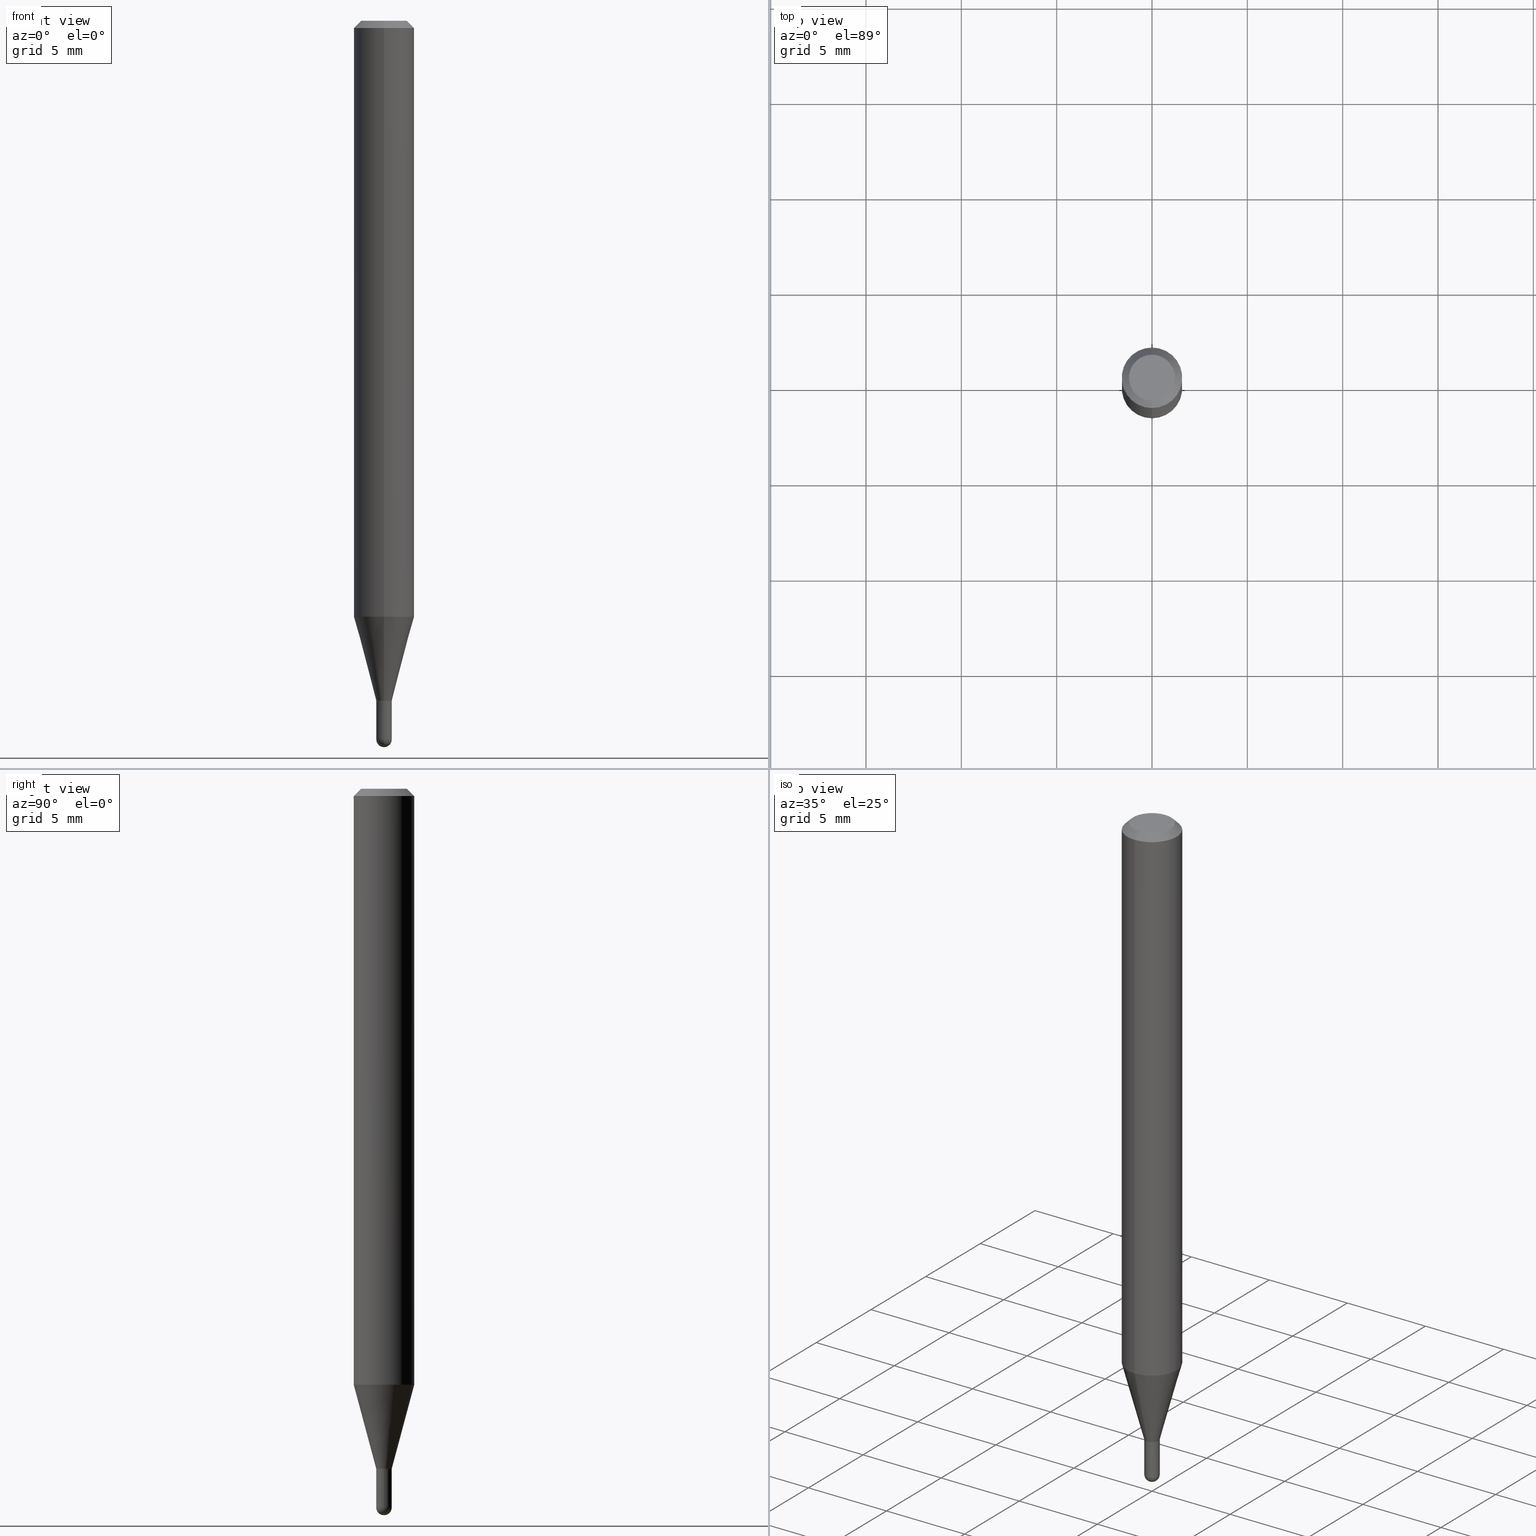
[diagram: canonical four-view strip — front | top / right | iso, engineering-drawing reading convention]
A machine part, canonical four-view strip (front | top / right | iso — engineering-drawing reading convention). The complete STEP part file that produces these views, byte-faithful:
ISO-10303-21;
HEADER;
FILE_DESCRIPTION (( 'STEP AP203' ),
    '1' );
FILE_NAME ('01455.STEP',
    '2024-03-07T21:07:16',
    ( '' ),
    ( '' ),
    'SwSTEP 2.0',
    'SolidWorks 2023',
    '' );
FILE_SCHEMA (( 'CONFIG_CONTROL_DESIGN' ));
ENDSEC;

DATA;
#1 = DIRECTION ( 'NONE',  ( -6.982962677686266711E-15, -1.000000000000000000, 0.000000000000000000 ) ) ;
#2 = CLOSED_SHELL ( 'NONE', ( #155, #510, #244, #22, #69, #334, #358, #122, #252, #385, #433, #423 ) ) ;
#3 = ORIENTED_EDGE ( 'NONE', *, *, #380, .F. ) ;
#4 = CIRCLE ( 'NONE', #356, 0.04749999999999999362 ) ;
#5 = DIRECTION ( 'NONE',  ( 1.000000000000000000, -6.982962677686271444E-15, 0.000000000000000000 ) ) ;
#6 = EDGE_CURVE ( 'NONE', #406, #120, #399, .T. ) ;
#7 = ORIENTED_EDGE ( 'NONE', *, *, #227, .T. ) ;
#8 = FACE_OUTER_BOUND ( 'NONE', #161, .T. ) ;
#9 = DIRECTION ( 'NONE',  ( 5.024295867788190974E-15, 0.7071067811865681119, 0.7071067811865270336 ) ) ;
#10 = CARTESIAN_POINT ( 'NONE',  ( 0.000000000000000000, 0.000000000000000000, 0.000000000000000000 ) ) ;
#11 = CIRCLE ( 'NONE', #209, 0.01599999999999992747 ) ;
#12 = AXIS2_PLACEMENT_3D ( 'NONE', #418, #111, #501 ) ;
#13 = PRODUCT_DEFINITION_FORMATION_WITH_SPECIFIED_SOURCE ( 'ANY', '', #195, .NOT_KNOWN. ) ;
#14 = DIRECTION ( 'NONE',  ( -2.445476360010259663E-29, 3.491470521335632447E-15, 1.000000000000000000 ) ) ;
#15 = CARTESIAN_POINT ( 'NONE',  ( 3.627707442316055177E-29, -5.183317741721863654E-15, -1.483999999999999986 ) ) ;
#16 = EDGE_CURVE ( 'NONE', #232, #241, #99, .T. ) ;
#17 = VERTEX_POINT ( 'NONE', #171 ) ;
#18 = DIRECTION ( 'NONE',  ( -6.982962677686266711E-15, -1.000000000000000000, 0.000000000000000000 ) ) ;
#19 = CIRCLE ( 'NONE', #307, 0.04749999999999999362 ) ;
#20 = AXIS2_PLACEMENT_3D ( 'NONE', #403, #46, #401 ) ;
#21 = CARTESIAN_POINT ( 'NONE',  ( 3.629075708378742535E-29, -5.181358306843227696E-15, -1.483999999999999986 ) ) ;
#22 = ADVANCED_FACE ( 'NONE', ( #169 ), #333, .T. ) ;
#23 = DIRECTION ( 'NONE',  ( 1.000000000000000000, -7.105427357601001070E-15, 4.926315508542082329E-29 ) ) ;
#24 = DIRECTION ( 'NONE',  ( 1.839019923739650802E-15, 0.2588190451025320638, 0.9659258262890650926 ) ) ;
#25 =( NAMED_UNIT ( * ) PLANE_ANGLE_UNIT ( ) SI_UNIT ( $, .RADIAN. ) );
#26 = FACE_OUTER_BOUND ( 'NONE', #149, .T. ) ;
#27 = DATE_TIME_ROLE ( 'classification_date' ) ;
#28 = DIRECTION ( 'NONE',  ( 1.000000000000000000, -6.982962677686271444E-15, 0.000000000000000000 ) ) ;
#29 = COORDINATED_UNIVERSAL_TIME_OFFSET ( 5, 0, .BEHIND. ) ;
#30 = CC_DESIGN_PERSON_AND_ORGANIZATION_ASSIGNMENT ( #184, #382, ( #13 ) ) ;
#31 = CARTESIAN_POINT ( 'NONE',  ( 4.440892098500924943E-16, 0.06249999999999567707, -1.230459637448052979 ) ) ;
#32 = COORDINATED_UNIVERSAL_TIME_OFFSET ( 5, 0, .BEHIND. ) ;
#33 = CARTESIAN_POINT ( 'NONE',  ( 3.840629472727447874E-16, 0.04749999999999999362, -1.747056831868805136E-16 ) ) ;
#34 = DIRECTION ( 'NONE',  ( -6.982962677686265922E-15, -1.000000000000000000, 0.000000000000000000 ) ) ;
#35 = CIRCLE ( 'NONE', #325, 0.06250000000000000000 ) ;
#36 = EDGE_CURVE ( 'NONE', #323, #481, #19, .T. ) ;
#37 = VERTEX_POINT ( 'NONE', #452 ) ;
#38 = APPROVAL_STATUS ( 'not_yet_approved' ) ;
#39 = CARTESIAN_POINT ( 'NONE',  ( -1.117274028429457833E-16, -0.01600000000000488184, -1.403500000000000192 ) ) ;
#40 = ORIENTED_EDGE ( 'NONE', *, *, #6, .T. ) ;
#41 = DIRECTION ( 'NONE',  ( -2.445476360010259663E-29, 3.491470521335632447E-15, 1.000000000000000000 ) ) ;
#42 = ORIENTED_EDGE ( 'NONE', *, *, #289, .T. ) ;
#43 = ADVANCED_FACE ( 'NONE', ( #8 ), #88, .T. ) ;
#44 = DIRECTION ( 'NONE',  ( -6.982962677686265922E-15, -1.000000000000000000, 4.370956789862821150E-15 ) ) ;
#45 = VERTEX_POINT ( 'NONE', #254 ) ;
#46 = DIRECTION ( 'NONE',  ( -2.445468806185136597E-29, 3.491481338843145583E-15, 1.000000000000000000 ) ) ;
#47 = ORIENTED_EDGE ( 'NONE', *, *, #473, .T. ) ;
#48 = CYLINDRICAL_SURFACE ( 'NONE', #485, 0.01599999999999992747 ) ;
#49 = VERTEX_POINT ( 'NONE', #246 ) ;
#50 = DIRECTION ( 'NONE',  ( 0.000000000000000000, 0.000000000000000000, 1.000000000000000000 ) ) ;
#51 = DIRECTION ( 'NONE',  ( -1.000000000000000000, 6.982962677686265922E-15, -4.883557194083112340E-29 ) ) ;
#52 = AXIS2_PLACEMENT_3D ( 'NONE', #56, #487, #483 ) ;
#53 = EDGE_CURVE ( 'NONE', #241, #491, #216, .T. ) ;
#54 = VECTOR ( 'NONE', #24, 39.37007874015748854 ) ;
#55 = EDGE_LOOP ( 'NONE', ( #472, #427, #212, #479 ) ) ;
#56 = CARTESIAN_POINT ( 'NONE',  ( 3.432226071274399995E-29, -4.900278876694560224E-15, -1.403500000000000192 ) ) ;
#57 = EDGE_CURVE ( 'NONE', #316, #406, #488, .T. ) ;
#58 = EDGE_LOOP ( 'NONE', ( #509, #361, #280, #407 ) ) ;
#59 = CIRCLE ( 'NONE', #127, 0.01600000000000000033 ) ;
#60 =( LENGTH_UNIT ( ) NAMED_UNIT ( * ) SI_UNIT ( $, .METRE. ) );
#61 = AXIS2_PLACEMENT_3D ( 'NONE', #221, #23, #97 ) ;
#62 = APPLICATION_CONTEXT ( 'configuration controlled 3d designs of mechanical parts and assemblies' ) ;
#63 = LINE ( 'NONE', #228, #54 ) ;
#64 = CYLINDRICAL_SURFACE ( 'NONE', #20, 0.01600000000000000033 ) ;
#65 = DIRECTION ( 'NONE',  ( -1.000000000000000000, 6.982962677686265922E-15, -4.876176775795935793E-29 ) ) ;
#66 = PERSON_AND_ORGANIZATION ( #108, #400 ) ;
#67 = DIRECTION ( 'NONE',  ( 1.000000000000000000, -6.982962677686271444E-15, 0.000000000000000000 ) ) ;
#68 = ADVANCED_BREP_SHAPE_REPRESENTATION ( '01455', ( #460, #445, #319 ), #94 ) ;
#69 = ADVANCED_FACE ( 'NONE', ( #141 ), #456, .T. ) ;
#70 = PERSON_AND_ORGANIZATION ( #108, #400 ) ;
#71 = FACE_OUTER_BOUND ( 'NONE', #55, .T. ) ;
#72 = CALENDAR_DATE ( 2024, 7, 3 ) ;
#73 = CARTESIAN_POINT ( 'NONE',  ( 3.668214540015391789E-31, -5.237205782003451554E-17, -0.01500000000000000812 ) ) ;
#74 = EDGE_CURVE ( 'NONE', #436, #170, #484, .T. ) ;
#75 = CARTESIAN_POINT ( 'NONE',  ( -4.364351673553912750E-16, -0.06250000000000005551, -0.01499999999999979128 ) ) ;
#76 = ORIENTED_EDGE ( 'NONE', *, *, #473, .F. ) ;
#77 = CYLINDRICAL_SURFACE ( 'NONE', #476, 0.06250000000000000000 ) ;
#78 = CC_DESIGN_APPROVAL ( #84, ( #86 ) ) ;
#79 = EDGE_LOOP ( 'NONE', ( #243, #215, #192, #40 ) ) ;
#80 = DIRECTION ( 'NONE',  ( -2.445476360010259663E-29, 3.491470521335632447E-15, 1.000000000000000000 ) ) ;
#81 = ORIENTED_EDGE ( 'NONE', *, *, #177, .T. ) ;
#82 = DIRECTION ( 'NONE',  ( -2.445476360010259663E-29, 3.491470521335632447E-15, 1.000000000000000000 ) ) ;
#83 = EDGE_LOOP ( 'NONE', ( #91, #321, #410, #152 ) ) ;
#84 = APPROVAL ( #271, 'UNSPECIFIED' ) ;
#85 = ORIENTED_EDGE ( 'NONE', *, *, #105, .F. ) ;
#86 = SECURITY_CLASSIFICATION ( '', '', #150 ) ;
#87 =( CONVERSION_BASED_UNIT ( 'INCH', #486 ) LENGTH_UNIT ( ) NAMED_UNIT ( #315 ) );
#88 = SPHERICAL_SURFACE ( 'NONE', #138, 0.01600000000000016340 ) ;
#89 = CARTESIAN_POINT ( 'NONE',  ( 3.433448809454404700E-29, -4.902024611955227928E-15, -1.404000000000000137 ) ) ;
#90 = EDGE_CURVE ( 'NONE', #49, #45, #283, .T. ) ;
#91 = ORIENTED_EDGE ( 'NONE', *, *, #346, .T. ) ;
#92 = ORIENTED_EDGE ( 'NONE', *, *, #53, .T. ) ;
#93 = AXIS2_PLACEMENT_3D ( 'NONE', #462, #298, #454 ) ;
#94 =( GEOMETRIC_REPRESENTATION_CONTEXT ( 3 ) GLOBAL_UNCERTAINTY_ASSIGNED_CONTEXT ( ( #275 ) ) GLOBAL_UNIT_ASSIGNED_CONTEXT ( ( #87, #25, #218 ) ) REPRESENTATION_CONTEXT ( 'NONE', 'WORKASPACE' ) );
#95 = ORIENTED_EDGE ( 'NONE', *, *, #197, .F. ) ;
#96 = EDGE_CURVE ( 'NONE', #45, #49, #11, .T. ) ;
#97 = DIRECTION ( 'NONE',  ( 7.105427357601000281E-15, 1.000000000000000000, 0.000000000000000000 ) ) ;
#98 = DIRECTION ( 'NONE',  ( -2.445476360010259663E-29, 3.491470521335632447E-15, 1.000000000000000000 ) ) ;
#99 = CIRCLE ( 'NONE', #439, 0.01600000000000016340 ) ;
#100 = AXIS2_PLACEMENT_3D ( 'NONE', #106, #415, #65 ) ;
#101 = FACE_OUTER_BOUND ( 'NONE', #398, .T. ) ;
#102 = PLANE ( 'NONE',  #100 ) ;
#103 = APPROVAL_DATE_TIME ( #417, #503 ) ;
#104 = DIRECTION ( 'NONE',  ( 2.445476360010259663E-29, -3.491470521335632447E-15, -1.000000000000000000 ) ) ;
#105 = EDGE_CURVE ( 'NONE', #491, #436, #174, .T. ) ;
#106 = CARTESIAN_POINT ( 'NONE',  ( 1.117274028430145868E-16, 0.01599999999999509800, -1.404000000000000137 ) ) ;
#107 = DATE_TIME_ROLE ( 'creation_date' ) ;
#108 = PERSON ( 'UNSPECIFIED', 'UNSPECIFIED', 'UNSPECIFIED', ('UNSPECIFIED'), ('UNSPECIFIED'), ('UNSPECIFIED') ) ;
#109 = AXIS2_PLACEMENT_3D ( 'NONE', #435, #242, #5 ) ;
#110 = VECTOR ( 'NONE', #378, 39.37007874015748143 ) ;
#111 = DIRECTION ( 'NONE',  ( -2.445476360010259663E-29, 3.491470521335632447E-15, 1.000000000000000000 ) ) ;
#112 = PERSON_AND_ORGANIZATION ( #108, #400 ) ;
#113 = CARTESIAN_POINT ( 'NONE',  ( -4.364351673553615941E-16, -0.06250000000000430211, -1.230459637448052534 ) ) ;
#114 = ORIENTED_EDGE ( 'NONE', *, *, #340, .F. ) ;
#115 = CALENDAR_DATE ( 2024, 7, 3 ) ;
#116 = CARTESIAN_POINT ( 'NONE',  ( 3.433448809454404700E-29, -4.902024611955227928E-15, -1.404000000000000137 ) ) ;
#117 = ORIENTED_EDGE ( 'NONE', *, *, #204, .T. ) ;
#118 = CARTESIAN_POINT ( 'NONE',  ( -0.01600000000000000033, -4.928012215567885758E-15, -1.483999999999999986 ) ) ;
#119 = VECTOR ( 'NONE', #82, 39.37007874015748143 ) ;
#120 = VERTEX_POINT ( 'NONE', #379 ) ;
#121 = SPHERICAL_SURFACE ( 'NONE', #217, 0.01600000000000016340 ) ;
#122 = ADVANCED_FACE ( 'NONE', ( #461 ), #250, .T. ) ;
#123 = ORIENTED_EDGE ( 'NONE', *, *, #16, .T. ) ;
#124 = DIRECTION ( 'NONE',  ( -2.445476360010259382E-29, 3.491470521335632447E-15, 1.000000000000000000 ) ) ;
#125 = ORIENTED_EDGE ( 'NONE', *, *, #57, .T. ) ;
#126 = CARTESIAN_POINT ( 'NONE',  ( 3.433448809454404700E-29, -4.902024611955227928E-15, -1.404000000000000137 ) ) ;
#127 = AXIS2_PLACEMENT_3D ( 'NONE', #285, #494, #376 ) ;
#128 = CARTESIAN_POINT ( 'NONE',  ( 2.166895866700634628E-46, -3.093733869239918501E-32, -8.860833423437975062E-18 ) ) ;
#129 = CC_DESIGN_APPROVAL ( #294, ( #305 ) ) ;
#130 = ORIENTED_EDGE ( 'NONE', *, *, #36, .T. ) ;
#131 = ORIENTED_EDGE ( 'NONE', *, *, #340, .T. ) ;
#132 = EDGE_LOOP ( 'NONE', ( #310, #81, #92, #469, #327 ) ) ;
#133 = AXIS2_PLACEMENT_3D ( 'NONE', #151, #188, #237 ) ;
#134 = DIRECTION ( 'NONE',  ( -2.445476360010259663E-29, 3.491470521335632447E-15, 1.000000000000000000 ) ) ;
#135 = CARTESIAN_POINT ( 'NONE',  ( 0.01600000000000000033, -1.117274028429802713E-16, 7.801882841273497199E-31 ) ) ;
#136 = DIRECTION ( 'NONE',  ( -2.445476360010259663E-29, 3.491470521335632447E-15, 1.000000000000000000 ) ) ;
#137 = DIRECTION ( 'NONE',  ( -2.445476360010259663E-29, 3.491470521335632447E-15, 1.000000000000000000 ) ) ;
#138 = AXIS2_PLACEMENT_3D ( 'NONE', #15, #286, #444 ) ;
#139 = CIRCLE ( 'NONE', #264, 0.01550000000000000162 ) ;
#140 = CARTESIAN_POINT ( 'NONE',  ( 0.000000000000000000, 0.000000000000000000, 0.000000000000000000 ) ) ;
#141 = FACE_OUTER_BOUND ( 'NONE', #331, .T. ) ;
#142 = DIRECTION ( 'NONE',  ( -6.982962677686266711E-15, -1.000000000000000000, 3.491470521335633630E-15 ) ) ;
#143 = CARTESIAN_POINT ( 'NONE',  ( 3.668214540015391789E-31, -5.237205782003451554E-17, -0.01500000000000000812 ) ) ;
#144 = EDGE_CURVE ( 'NONE', #239, #37, #342, .T. ) ;
#145 = PERSON_AND_ORGANIZATION_ROLE ( 'creator' ) ;
#146 = AXIS2_PLACEMENT_3D ( 'NONE', #143, #222, #178 ) ;
#147 = CONICAL_SURFACE ( 'NONE', #146, 0.06250000000000000000, 0.7853981633974483900 ) ;
#148 = CARTESIAN_POINT ( 'NONE',  ( -1.117274028429797290E-16, -0.01599999999999992747, 5.586352834136985656E-17 ) ) ;
#149 = EDGE_LOOP ( 'NONE', ( #202, #371 ) ) ;
#150 = SECURITY_CLASSIFICATION_LEVEL ( 'unclassified' ) ;
#151 = CARTESIAN_POINT ( 'NONE',  ( 3.009059955326007696E-29, -4.296113551843206303E-15, -1.230459637448052757 ) ) ;
#152 = ORIENTED_EDGE ( 'NONE', *, *, #57, .F. ) ;
#153 = PLANE ( 'NONE',  #173 ) ;
#154 = ORIENTED_EDGE ( 'NONE', *, *, #144, .F. ) ;
#155 = ADVANCED_FACE ( 'NONE', ( #71 ), #296, .F. ) ;
#156 = FACE_OUTER_BOUND ( 'NONE', #324, .T. ) ;
#157 = CIRCLE ( 'NONE', #373, 0.01600000000000000033 ) ;
#158 = LOCAL_TIME ( 16, 7, 16.00000000000000000, #32 ) ;
#159 = ORIENTED_EDGE ( 'NONE', *, *, #16, .F. ) ;
#160 = DIRECTION ( 'NONE',  ( 6.982962677686265922E-15, 1.000000000000000000, -3.491470521335632447E-15 ) ) ;
#161 = EDGE_LOOP ( 'NONE', ( #434, #123, #290, #451 ) ) ;
#162 = EDGE_LOOP ( 'NONE', ( #363, #205, #76, #114 ) ) ;
#163 = CARTESIAN_POINT ( 'NONE',  ( 0.01600000000000000033, -5.153426456132482850E-15, -1.483999999999999986 ) ) ;
#164 = VECTOR ( 'NONE', #341, 39.37007874015748143 ) ;
#165 = CIRCLE ( 'NONE', #61, 0.01600000000000016340 ) ;
#166 = DIRECTION ( 'NONE',  ( -2.445468806185136597E-29, 3.491481338843145583E-15, 1.000000000000000000 ) ) ;
#167 = AXIS2_PLACEMENT_3D ( 'NONE', #297, #364, #326 ) ;
#168 = DIRECTION ( 'NONE',  ( -6.982962677686265922E-15, -1.000000000000000000, 3.483106191921935554E-15 ) ) ;
#169 = FACE_OUTER_BOUND ( 'NONE', #162, .T. ) ;
#170 = VERTEX_POINT ( 'NONE', #375 ) ;
#171 = CARTESIAN_POINT ( 'NONE',  ( 1.119104808822498490E-16, 0.01549999999999509930, -1.404000000000000137 ) ) ;
#172 = AXIS2_PLACEMENT_3D ( 'NONE', #10, #134, #293 ) ;
#173 = AXIS2_PLACEMENT_3D ( 'NONE', #116, #124, #352 ) ;
#174 = LINE ( 'NONE', #135, #235 ) ;
#175 = CARTESIAN_POINT ( 'NONE',  ( 0.01600000000000000033, -5.013767202578757042E-15, -1.404000000000000137 ) ) ;
#176 = CARTESIAN_POINT ( 'NONE',  ( 3.433438203883931854E-29, -4.902039799735776870E-15, -1.404000000000000137 ) ) ;
#177 = EDGE_CURVE ( 'NONE', #253, #241, #157, .T. ) ;
#178 = DIRECTION ( 'NONE',  ( 6.982962677686265922E-15, 1.000000000000000000, -3.483106191921935554E-15 ) ) ;
#179 = APPLICATION_CONTEXT ( 'configuration controlled 3d designs of mechanical parts and assemblies' ) ;
#180 = DESIGN_CONTEXT ( 'detailed design', #62, 'design' ) ;
#181 = CIRCLE ( 'NONE', #133, 0.06250000000000000000 ) ;
#182 = APPROVAL_ROLE ( '' ) ;
#183 = CARTESIAN_POINT ( 'NONE',  ( 2.166895866700634628E-46, -3.093733869239918501E-32, -8.860833423437975062E-18 ) ) ;
#184 = PERSON_AND_ORGANIZATION ( #108, #400 ) ;
#185 = EDGE_CURVE ( 'NONE', #170, #436, #291, .T. ) ;
#186 = CARTESIAN_POINT ( 'NONE',  ( -1.117274028429445507E-16, -0.01600000000000526348, -1.483999999999999986 ) ) ;
#187 = CALENDAR_DATE ( 2024, 7, 3 ) ;
#188 = DIRECTION ( 'NONE',  ( -2.445476360010259663E-29, 3.491470521335632447E-15, 1.000000000000000000 ) ) ;
#189 = CALENDAR_DATE ( 2024, 7, 3 ) ;
#190 = CIRCLE ( 'NONE', #109, 0.01600000000000000033 ) ;
#191 = DIRECTION ( 'NONE',  ( -2.445476360010259663E-29, 3.491470521335632447E-15, 1.000000000000000000 ) ) ;
#192 = ORIENTED_EDGE ( 'NONE', *, *, #328, .T. ) ;
#193 = APPROVAL_DATE_TIME ( #343, #84 ) ;
#194 = CARTESIAN_POINT ( 'NONE',  ( 3.433448809454404700E-29, -4.902024611955227928E-15, -1.404000000000000137 ) ) ;
#195 = PRODUCT ( '01455', '01455', '', ( #349 ) ) ;
#196 = ORIENTED_EDGE ( 'NONE', *, *, #289, .F. ) ;
#197 = EDGE_CURVE ( 'NONE', #120, #406, #374, .T. ) ;
#198 = DIRECTION ( 'NONE',  ( -2.445476360010259663E-29, 3.491470521335632447E-15, 1.000000000000000000 ) ) ;
#199 = ORIENTED_EDGE ( 'NONE', *, *, #380, .T. ) ;
#200 = FACE_OUTER_BOUND ( 'NONE', #512, .T. ) ;
#201 = VECTOR ( 'NONE', #41, 39.37007874015748143 ) ;
#202 = ORIENTED_EDGE ( 'NONE', *, *, #74, .T. ) ;
#203 = FACE_OUTER_BOUND ( 'NONE', #393, .T. ) ;
#204 = EDGE_CURVE ( 'NONE', #481, #323, #4, .T. ) ;
#205 = ORIENTED_EDGE ( 'NONE', *, *, #144, .T. ) ;
#206 = ORIENTED_EDGE ( 'NONE', *, *, #346, .F. ) ;
#207 = PRODUCT_RELATED_PRODUCT_CATEGORY ( 'detail', '', ( #195 ) ) ;
#208 = DIRECTION ( 'NONE',  ( 1.000000000000000000, 0.000000000000000000, 0.000000000000000000 ) ) ;
#209 = AXIS2_PLACEMENT_3D ( 'NONE', #339, #419, #377 ) ;
#210 = AXIS2_PLACEMENT_3D ( 'NONE', #194, #397, #34 ) ;
#211 = ORIENTED_EDGE ( 'NONE', *, *, #90, .T. ) ;
#212 = ORIENTED_EDGE ( 'NONE', *, *, #197, .T. ) ;
#213 = ADVANCED_FACE ( 'NONE', ( #492 ), #304, .T. ) ;
#214 = CARTESIAN_POINT ( 'NONE',  ( 3.627707442316055177E-29, -5.183317741721863654E-15, -1.483999999999999986 ) ) ;
#215 = ORIENTED_EDGE ( 'NONE', *, *, #96, .F. ) ;
#216 = CIRCLE ( 'NONE', #388, 0.01600000000000000033 ) ;
#217 = AXIS2_PLACEMENT_3D ( 'NONE', #505, #437, #1 ) ;
#218 =( NAMED_UNIT ( * ) SI_UNIT ( $, .STERADIAN. ) SOLID_ANGLE_UNIT ( ) );
#219 = DIRECTION ( 'NONE',  ( -2.445468806185136597E-29, 3.491481338843145583E-15, 1.000000000000000000 ) ) ;
#220 = CC_DESIGN_DATE_AND_TIME_ASSIGNMENT ( #464, #107, ( #305 ) ) ;
#221 = CARTESIAN_POINT ( 'NONE',  ( 3.627707442316055177E-29, -5.183317741721863654E-15, -1.483999999999999986 ) ) ;
#222 = DIRECTION ( 'NONE',  ( 2.445476360010259663E-29, -3.491470521335632447E-15, -1.000000000000000000 ) ) ;
#223 = CC_DESIGN_PERSON_AND_ORGANIZATION_ASSIGNMENT ( #499, #268, ( #86 ) ) ;
#224 = DIRECTION ( 'NONE',  ( -2.445476360010259663E-29, 3.491470521335632447E-15, 1.000000000000000000 ) ) ;
#225 = VECTOR ( 'NONE', #386, 39.37007874015748143 ) ;
#226 = CALENDAR_DATE ( 2024, 7, 3 ) ;
#227 = EDGE_CURVE ( 'NONE', #49, #239, #63, .T. ) ;
#228 = CARTESIAN_POINT ( 'NONE',  ( 1.136868377216498299E-16, 0.01599999999999502515, -1.404000000000000137 ) ) ;
#229 = COORDINATED_UNIVERSAL_TIME_OFFSET ( 5, 0, .BEHIND. ) ;
#230 = CARTESIAN_POINT ( 'NONE',  ( 1.136868377216528867E-16, 0.01599999999999490025, -1.483999999999999986 ) ) ;
#231 = CARTESIAN_POINT ( 'NONE',  ( 0.000000000000000000, 0.000000000000000000, 0.000000000000000000 ) ) ;
#232 = VERTEX_POINT ( 'NONE', #383 ) ;
#233 = COORDINATED_UNIVERSAL_TIME_OFFSET ( 5, 0, .BEHIND. ) ;
#234 = AXIS2_PLACEMENT_3D ( 'NONE', #465, #224, #413 ) ;
#235 = VECTOR ( 'NONE', #302, 39.37007874015748143 ) ;
#236 = LOCAL_TIME ( 16, 7, 16.00000000000000000, #29 ) ;
#237 = DIRECTION ( 'NONE',  ( -6.982962677686265922E-15, -1.000000000000000000, 4.370956789862821150E-15 ) ) ;
#238 = ADVANCED_FACE ( 'NONE', ( #26 ), #102, .F. ) ;
#239 = VERTEX_POINT ( 'NONE', #31 ) ;
#240 = LINE ( 'NONE', #394, #276 ) ;
#241 = VERTEX_POINT ( 'NONE', #186 ) ;
#242 = DIRECTION ( 'NONE',  ( -2.445468806185136597E-29, 3.491481338843145583E-15, 1.000000000000000000 ) ) ;
#243 = ORIENTED_EDGE ( 'NONE', *, *, #255, .F. ) ;
#244 = ADVANCED_FACE ( 'NONE', ( #306 ), #147, .T. ) ;
#245 = ORIENTED_EDGE ( 'NONE', *, *, #396, .F. ) ;
#246 = CARTESIAN_POINT ( 'NONE',  ( 2.788880237858713223E-16, 0.01599999999999502168, -1.404000000000000137 ) ) ;
#247 = DIRECTION ( 'NONE',  ( -2.445476360010259663E-29, 3.491470521335632447E-15, 1.000000000000000000 ) ) ;
#248 = ORIENTED_EDGE ( 'NONE', *, *, #312, .T. ) ;
#249 = CLOSED_SHELL ( 'NONE', ( #416, #272, #238, #43, #213 ) ) ;
#250 = CONICAL_SURFACE ( 'NONE', #420, 0.06250000000000000000, 0.7853981633974483900 ) ;
#251 = ORIENTED_EDGE ( 'NONE', *, *, #53, .F. ) ;
#252 = ADVANCED_FACE ( 'NONE', ( #344 ), #354, .F. ) ;
#253 = VERTEX_POINT ( 'NONE', #118 ) ;
#254 = CARTESIAN_POINT ( 'NONE',  ( -1.117274028429453889E-16, -0.01600000000000482980, -1.404000000000000137 ) ) ;
#255 = EDGE_CURVE ( 'NONE', #49, #120, #277, .T. ) ;
#256 = DIRECTION ( 'NONE',  ( -2.445476360010259663E-29, 3.491470521335632447E-15, 1.000000000000000000 ) ) ;
#257 = AXIS2_PLACEMENT_3D ( 'NONE', #176, #424, #337 ) ;
#258 = AXIS2_PLACEMENT_3D ( 'NONE', #126, #136, #301 ) ;
#259 = LOCAL_TIME ( 16, 7, 16.00000000000000000, #229 ) ;
#260 = DIRECTION ( 'NONE',  ( -6.982962677686264344E-15, -1.000000000000000000, 0.000000000000000000 ) ) ;
#261 = PERSON_AND_ORGANIZATION_ROLE ( 'design_supplier' ) ;
#262 = CARTESIAN_POINT ( 'NONE',  ( 4.440892098500625669E-16, 0.06250000000000000000, -2.182169075834770279E-16 ) ) ;
#263 = DIRECTION ( 'NONE',  ( -2.445468806185136597E-29, 3.491481338843145583E-15, 1.000000000000000000 ) ) ;
#264 = AXIS2_PLACEMENT_3D ( 'NONE', #322, #198, #281 ) ;
#265 = COORDINATED_UNIVERSAL_TIME_OFFSET ( 5, 0, .BEHIND. ) ;
#266 = CC_DESIGN_DATE_AND_TIME_ASSIGNMENT ( #504, #27, ( #86 ) ) ;
#267 = DIRECTION ( 'NONE',  ( 6.982962677686265922E-15, 1.000000000000000000, -3.483106191921935554E-15 ) ) ;
#268 = PERSON_AND_ORGANIZATION_ROLE ( 'classification_officer' ) ;
#269 = DIRECTION ( 'NONE',  ( 2.445476360010259382E-29, -3.491470521335632447E-15, -1.000000000000000000 ) ) ;
#270 = ORIENTED_EDGE ( 'NONE', *, *, #227, .F. ) ;
#271 = APPROVAL_STATUS ( 'not_yet_approved' ) ;
#272 = ADVANCED_FACE ( 'NONE', ( #156 ), #121, .T. ) ;
#273 = CARTESIAN_POINT ( 'NONE',  ( -1.117274028429453889E-16, -0.01600000000000482980, -1.404000000000000137 ) ) ;
#274 = EDGE_LOOP ( 'NONE', ( #154, #248, #131, #365 ) ) ;
#275 = UNCERTAINTY_MEASURE_WITH_UNIT (LENGTH_MEASURE( 1.000000000000000082E-05 ), #87, 'distance_accuracy_value', 'NONE');
#276 = VECTOR ( 'NONE', #496, 39.37007874015748143 ) ;
#277 = LINE ( 'NONE', #468, #449 ) ;
#278 = ORIENTED_EDGE ( 'NONE', *, *, #204, .F. ) ;
#279 = DIRECTION ( 'NONE',  ( -2.445476360010259663E-29, 3.491470521335632447E-15, 1.000000000000000000 ) ) ;
#280 = ORIENTED_EDGE ( 'NONE', *, *, #482, .T. ) ;
#281 = DIRECTION ( 'NONE',  ( -6.982962677686265922E-15, -1.000000000000000000, 0.000000000000000000 ) ) ;
#282 = EDGE_LOOP ( 'NONE', ( #130, #117 ) ) ;
#283 = CIRCLE ( 'NONE', #234, 0.01599999999999992747 ) ;
#284 = VECTOR ( 'NONE', #432, 39.37007874015748143 ) ;
#285 = CARTESIAN_POINT ( 'NONE',  ( 3.629075708378742535E-29, -5.181358306843227696E-15, -1.483999999999999986 ) ) ;
#286 = DIRECTION ( 'NONE',  ( 1.000000000000000000, -6.982962677686266711E-15, 4.883557194083112340E-29 ) ) ;
#287 = CARTESIAN_POINT ( 'NONE',  ( 0.000000000000000000, 0.000000000000000000, 0.000000000000000000 ) ) ;
#288 = VERTEX_POINT ( 'NONE', #230 ) ;
#289 = EDGE_CURVE ( 'NONE', #45, #353, #471, .T. ) ;
#290 = ORIENTED_EDGE ( 'NONE', *, *, #177, .F. ) ;
#291 = CIRCLE ( 'NONE', #440, 0.01600000000000000033 ) ;
#292 = ORIENTED_EDGE ( 'NONE', *, *, #463, .T. ) ;
#293 = DIRECTION ( 'NONE',  ( -6.982962677686265922E-15, -1.000000000000000000, 3.491470521335632447E-15 ) ) ;
#294 = APPROVAL ( #422, 'UNSPECIFIED' ) ;
#295 = DIRECTION ( 'NONE',  ( -6.982962677686265922E-15, -1.000000000000000000, 0.000000000000000000 ) ) ;
#296 = CYLINDRICAL_SURFACE ( 'NONE', #12, 0.01599999999999992747 ) ;
#297 = CARTESIAN_POINT ( 'NONE',  ( 3.668214540015391789E-31, -5.237205782003451554E-17, -0.01500000000000000812 ) ) ;
#298 = DIRECTION ( 'NONE',  ( -2.445468806185136597E-29, 3.491481338843145583E-15, 1.000000000000000000 ) ) ;
#299 = AXIS2_PLACEMENT_3D ( 'NONE', #495, #137, #260 ) ;
#300 = LOCAL_TIME ( 16, 7, 16.00000000000000000, #265 ) ;
#301 = DIRECTION ( 'NONE',  ( -6.982962677686265922E-15, -1.000000000000000000, 0.000000000000000000 ) ) ;
#302 = DIRECTION ( 'NONE',  ( -2.445468806185136877E-29, 3.491481338843145188E-15, 1.000000000000000000 ) ) ;
#303 = PERSON_AND_ORGANIZATION ( #108, #400 ) ;
#304 = CYLINDRICAL_SURFACE ( 'NONE', #93, 0.01600000000000000033 ) ;
#305 = PRODUCT_DEFINITION ( 'UNKNOWN', '', #13, #180 ) ;
#306 = FACE_OUTER_BOUND ( 'NONE', #490, .T. ) ;
#307 = AXIS2_PLACEMENT_3D ( 'NONE', #128, #447, #370 ) ;
#308 = PERSON_AND_ORGANIZATION ( #108, #400 ) ;
#309 = DIRECTION ( 'NONE',  ( -6.982962677686264344E-15, -1.000000000000000000, 0.000000000000000000 ) ) ;
#310 = ORIENTED_EDGE ( 'NONE', *, *, #408, .F. ) ;
#311 = APPLICATION_PROTOCOL_DEFINITION ( 'international standard', 'config_control_design', 1994, #62 ) ;
#312 = EDGE_CURVE ( 'NONE', #239, #353, #181, .T. ) ;
#313 = PRODUCT_DEFINITION_SHAPE ( 'NONE', 'NONE',  #305 ) ;
#314 = LINE ( 'NONE', #320, #119 ) ;
#315 = DIMENSIONAL_EXPONENTS ( 1.000000000000000000, 0.000000000000000000, 0.000000000000000000, 0.000000000000000000, 0.000000000000000000, 0.000000000000000000, 0.000000000000000000 ) ;
#316 = VERTEX_POINT ( 'NONE', #429 ) ;
#317 = CARTESIAN_POINT ( 'NONE',  ( -4.287811248607203282E-16, -0.06250000000000005551, -0.01499999999999979128 ) ) ;
#318 = ORIENTED_EDGE ( 'NONE', *, *, #408, .T. ) ;
#319 = AXIS2_PLACEMENT_3D ( 'NONE', #287, #50, #208 ) ;
#320 = CARTESIAN_POINT ( 'NONE',  ( -4.364351673553916201E-16, -0.06250000000000000000, 2.182169075834770279E-16 ) ) ;
#321 = ORIENTED_EDGE ( 'NONE', *, *, #500, .T. ) ;
#322 = CARTESIAN_POINT ( 'NONE',  ( 3.433448809454404700E-29, -4.902024611955227928E-15, -1.404000000000000137 ) ) ;
#323 = VERTEX_POINT ( 'NONE', #33 ) ;
#324 = EDGE_LOOP ( 'NONE', ( #159, #292, #409, #251 ) ) ;
#325 = AXIS2_PLACEMENT_3D ( 'NONE', #338, #14, #168 ) ;
#326 = DIRECTION ( 'NONE',  ( -6.982962677686265922E-15, -1.000000000000000000, 3.483106191921935554E-15 ) ) ;
#327 = ORIENTED_EDGE ( 'NONE', *, *, #185, .F. ) ;
#328 = EDGE_CURVE ( 'NONE', #45, #406, #359, .T. ) ;
#329 = FACE_OUTER_BOUND ( 'NONE', #83, .T. ) ;
#330 = DIRECTION ( 'NONE',  ( 1.000000000000000000, -6.982962677686271444E-15, 0.000000000000000000 ) ) ;
#331 = EDGE_LOOP ( 'NONE', ( #402, #7, #245, #196 ) ) ;
#332 = CONICAL_SURFACE ( 'NONE', #412, 0.01599999999999992747, 0.2617993877991576790 ) ;
#333 = CYLINDRICAL_SURFACE ( 'NONE', #172, 0.06250000000000000000 ) ;
#334 = ADVANCED_FACE ( 'NONE', ( #200 ), #332, .T. ) ;
#335 = DIRECTION ( 'NONE',  ( -2.445476360010259663E-29, 3.491470521335632447E-15, 1.000000000000000000 ) ) ;
#336 = FACE_OUTER_BOUND ( 'NONE', #79, .T. ) ;
#337 = DIRECTION ( 'NONE',  ( 1.000000000000000000, -6.982962677686271444E-15, 0.000000000000000000 ) ) ;
#338 = CARTESIAN_POINT ( 'NONE',  ( 3.668214540015391789E-31, -5.237205782003451554E-17, -0.01500000000000000812 ) ) ;
#339 = CARTESIAN_POINT ( 'NONE',  ( 3.433448809454404700E-29, -4.902024611955227928E-15, -1.404000000000000137 ) ) ;
#340 = EDGE_CURVE ( 'NONE', #353, #355, #314, .T. ) ;
#341 = DIRECTION ( 'NONE',  ( -4.937700262164674260E-15, -0.7071067811865632269, 0.7071067811865319186 ) ) ;
#342 = LINE ( 'NONE', #262, #431 ) ;
#343 = DATE_AND_TIME ( #187, #158 ) ;
#344 = FACE_OUTER_BOUND ( 'NONE', #282, .T. ) ;
#345 = AXIS2_PLACEMENT_3D ( 'NONE', #498, #98, #381 ) ;
#346 = EDGE_CURVE ( 'NONE', #316, #17, #139, .T. ) ;
#347 = CONICAL_SURFACE ( 'NONE', #258, 0.01550000000000000162, 0.7853981633974739252 ) ;
#348 = AXIS2_PLACEMENT_3D ( 'NONE', #89, #247, #295 ) ;
#349 = MECHANICAL_CONTEXT ( 'NONE', #179, 'mechanical' ) ;
#350 = LINE ( 'NONE', #317, #284 ) ;
#351 = ORIENTED_EDGE ( 'NONE', *, *, #404, .T. ) ;
#352 = DIRECTION ( 'NONE',  ( -6.982962677686265922E-15, -1.000000000000000000, 3.491470521335632447E-15 ) ) ;
#353 = VERTEX_POINT ( 'NONE', #113 ) ;
#354 = PLANE ( 'NONE',  #367 ) ;
#355 = VERTEX_POINT ( 'NONE', #75 ) ;
#356 = AXIS2_PLACEMENT_3D ( 'NONE', #183, #335, #142 ) ;
#357 = LOCAL_TIME ( 16, 7, 16.00000000000000000, #233 ) ;
#358 = ADVANCED_FACE ( 'NONE', ( #474 ), #77, .T. ) ;
#359 = LINE ( 'NONE', #148, #201 ) ;
#360 = CC_DESIGN_PERSON_AND_ORGANIZATION_ASSIGNMENT ( #112, #261, ( #13 ) ) ;
#361 = ORIENTED_EDGE ( 'NONE', *, *, #36, .F. ) ;
#362 = DIRECTION ( 'NONE',  ( -6.982962677686264344E-15, -1.000000000000000000, 3.491470521335632052E-15 ) ) ;
#363 = ORIENTED_EDGE ( 'NONE', *, *, #396, .T. ) ;
#364 = DIRECTION ( 'NONE',  ( -2.445476360010259663E-29, 3.491470521335632447E-15, 1.000000000000000000 ) ) ;
#365 = ORIENTED_EDGE ( 'NONE', *, *, #457, .F. ) ;
#366 = EDGE_CURVE ( 'NONE', #491, #288, #190, .T. ) ;
#367 = AXIS2_PLACEMENT_3D ( 'NONE', #478, #269, #160 ) ;
#368 = DIRECTION ( 'NONE',  ( -2.445476360010259663E-29, 3.491470521335632447E-15, 1.000000000000000000 ) ) ;
#369 = VECTOR ( 'NONE', #9, 39.37007874015748143 ) ;
#370 = DIRECTION ( 'NONE',  ( -6.982962677686266711E-15, -1.000000000000000000, 3.491470521335633630E-15 ) ) ;
#371 = ORIENTED_EDGE ( 'NONE', *, *, #185, .T. ) ;
#372 = ORIENTED_EDGE ( 'NONE', *, *, #500, .F. ) ;
#373 = AXIS2_PLACEMENT_3D ( 'NONE', #21, #263, #67 ) ;
#374 = CIRCLE ( 'NONE', #299, 0.01599999999999992747 ) ;
#375 = CARTESIAN_POINT ( 'NONE',  ( -0.01600000000000000033, -4.928012215567885758E-15, -1.404000000000000137 ) ) ;
#376 = DIRECTION ( 'NONE',  ( 1.000000000000000000, -6.982962677686271444E-15, 0.000000000000000000 ) ) ;
#377 = DIRECTION ( 'NONE',  ( -6.982962677686264344E-15, -1.000000000000000000, 0.000000000000000000 ) ) ;
#378 = DIRECTION ( 'NONE',  ( 4.937700262164548042E-15, 0.7071067811865451302, -0.7071067811865499042 ) ) ;
#379 = CARTESIAN_POINT ( 'NONE',  ( 1.136868377216494354E-16, 0.01599999999999496963, -1.403500000000000192 ) ) ;
#380 = EDGE_CURVE ( 'NONE', #17, #316, #506, .T. ) ;
#381 = DIRECTION ( 'NONE',  ( -6.982962677686264344E-15, -1.000000000000000000, 0.000000000000000000 ) ) ;
#382 = PERSON_AND_ORGANIZATION_ROLE ( 'creator' ) ;
#383 = CARTESIAN_POINT ( 'NONE',  ( 3.666150810183674138E-29, -5.240161160582673297E-15, -1.500000000000000222 ) ) ;
#384 = APPROVAL_DATE_TIME ( #428, #294 ) ;
#385 = ADVANCED_FACE ( 'NONE', ( #480 ), #153, .F. ) ;
#386 = DIRECTION ( 'NONE',  ( -1.807323732225380232E-15, -0.2588190451025253469, 0.9659258262890670910 ) ) ;
#387 = DIRECTION ( 'NONE',  ( -6.982962677686265922E-15, -1.000000000000000000, 3.491470521335632447E-15 ) ) ;
#388 = AXIS2_PLACEMENT_3D ( 'NONE', #405, #166, #330 ) ;
#389 = EDGE_LOOP ( 'NONE', ( #206, #3 ) ) ;
#390 = AXIS2_PLACEMENT_3D ( 'NONE', #392, #191, #44 ) ;
#391 = CIRCLE ( 'NONE', #167, 0.06250000000000000000 ) ;
#392 = CARTESIAN_POINT ( 'NONE',  ( 3.009059955326007696E-29, -4.296113551843206303E-15, -1.230459637448052757 ) ) ;
#393 = EDGE_LOOP ( 'NONE', ( #372, #199, #125, #95 ) ) ;
#394 = CARTESIAN_POINT ( 'NONE',  ( -0.01600000000000000033, 1.136868377216160321E-16, -7.870296144407849335E-31 ) ) ;
#395 = ORIENTED_EDGE ( 'NONE', *, *, #442, .T. ) ;
#396 = EDGE_CURVE ( 'NONE', #353, #239, #497, .T. ) ;
#397 = DIRECTION ( 'NONE',  ( -2.445476360010259663E-29, 3.491470521335632447E-15, 1.000000000000000000 ) ) ;
#398 = EDGE_LOOP ( 'NONE', ( #395, #318, #430, #85, #475 ) ) ;
#399 = CIRCLE ( 'NONE', #52, 0.01599999999999992747 ) ;
#400 = ORGANIZATION ( 'UNSPECIFIED', 'UNSPECIFIED', '' ) ;
#401 = DIRECTION ( 'NONE',  ( 1.000000000000000000, -6.982962677686266711E-15, 4.876176775795935793E-29 ) ) ;
#402 = ORIENTED_EDGE ( 'NONE', *, *, #96, .T. ) ;
#403 = CARTESIAN_POINT ( 'NONE',  ( 0.000000000000000000, 0.000000000000000000, 0.000000000000000000 ) ) ;
#404 = EDGE_CURVE ( 'NONE', #481, #355, #350, .T. ) ;
#405 = CARTESIAN_POINT ( 'NONE',  ( 3.629075708378742535E-29, -5.181358306843227696E-15, -1.483999999999999986 ) ) ;
#406 = VERTEX_POINT ( 'NONE', #39 ) ;
#407 = ORIENTED_EDGE ( 'NONE', *, *, #457, .T. ) ;
#408 = EDGE_CURVE ( 'NONE', #253, #170, #240, .T. ) ;
#409 = ORIENTED_EDGE ( 'NONE', *, *, #366, .F. ) ;
#410 = ORIENTED_EDGE ( 'NONE', *, *, #6, .F. ) ;
#411 = LINE ( 'NONE', #453, #369 ) ;
#412 = AXIS2_PLACEMENT_3D ( 'NONE', #426, #279, #309 ) ;
#413 = DIRECTION ( 'NONE',  ( -6.982962677686264344E-15, -1.000000000000000000, 0.000000000000000000 ) ) ;
#414 = CARTESIAN_POINT ( 'NONE',  ( -3.773273898774340269E-16, -0.04749999999999999362, 1.569840163400045235E-16 ) ) ;
#415 = DIRECTION ( 'NONE',  ( 2.438088387897960049E-29, -3.491481338843145188E-15, -1.000000000000000000 ) ) ;
#416 = ADVANCED_FACE ( 'NONE', ( #101 ), #64, .T. ) ;
#417 = DATE_AND_TIME ( #72, #300 ) ;
#418 = CARTESIAN_POINT ( 'NONE',  ( 0.000000000000000000, 0.000000000000000000, 0.000000000000000000 ) ) ;
#419 = DIRECTION ( 'NONE',  ( -2.445476360010259663E-29, 3.491470521335632447E-15, 1.000000000000000000 ) ) ;
#420 = AXIS2_PLACEMENT_3D ( 'NONE', #73, #104, #267 ) ;
#421 = APPROVAL_PERSON_ORGANIZATION ( #308, #294, #467 ) ;
#422 = APPROVAL_STATUS ( 'not_yet_approved' ) ;
#423 = ADVANCED_FACE ( 'NONE', ( #336 ), #48, .F. ) ;
#424 = DIRECTION ( 'NONE',  ( -2.445468806185136597E-29, 3.491481338843145583E-15, 1.000000000000000000 ) ) ;
#425 = SHAPE_DEFINITION_REPRESENTATION ( #313, #68 ) ;
#426 = CARTESIAN_POINT ( 'NONE',  ( 3.433448809454404700E-29, -4.902024611955227928E-15, -1.404000000000000137 ) ) ;
#427 = ORIENTED_EDGE ( 'NONE', *, *, #255, .T. ) ;
#428 = DATE_AND_TIME ( #189, #357 ) ;
#429 = CARTESIAN_POINT ( 'NONE',  ( -1.082359215041027885E-16, -0.01550000000000490395, -1.404000000000000137 ) ) ;
#430 = ORIENTED_EDGE ( 'NONE', *, *, #74, .F. ) ;
#431 = VECTOR ( 'NONE', #256, 39.37007874015748143 ) ;
#432 = DIRECTION ( 'NONE',  ( -4.851104656540964275E-15, -0.7071067811865500152, -0.7071067811865450192 ) ) ;
#433 = ADVANCED_FACE ( 'NONE', ( #203 ), #347, .T. ) ;
#434 = ORIENTED_EDGE ( 'NONE', *, *, #463, .F. ) ;
#435 = CARTESIAN_POINT ( 'NONE',  ( 3.629075708378742535E-29, -5.181358306843227696E-15, -1.483999999999999986 ) ) ;
#436 = VERTEX_POINT ( 'NONE', #175 ) ;
#437 = DIRECTION ( 'NONE',  ( 1.000000000000000000, -6.982962677686266711E-15, 4.883557194083112340E-29 ) ) ;
#438 = ORIENTED_EDGE ( 'NONE', *, *, #482, .F. ) ;
#439 = AXIS2_PLACEMENT_3D ( 'NONE', #214, #51, #18 ) ;
#440 = AXIS2_PLACEMENT_3D ( 'NONE', #458, #219, #28 ) ;
#441 = CC_DESIGN_SECURITY_CLASSIFICATION ( #86, ( #13 ) ) ;
#442 = EDGE_CURVE ( 'NONE', #288, #253, #59, .T. ) ;
#443 = APPLICATION_PROTOCOL_DEFINITION ( 'international standard', 'config_control_design', 1994, #179 ) ;
#444 = DIRECTION ( 'NONE',  ( -6.982962677686266711E-15, -1.000000000000000000, 0.000000000000000000 ) ) ;
#445 = MANIFOLD_SOLID_BREP ( 'Body-Move/Copy2[2]', #2 ) ;
#446 = CARTESIAN_POINT ( 'NONE',  ( 4.364351673553919652E-16, 0.06249999999999995143, -0.01500000000000022669 ) ) ;
#447 = DIRECTION ( 'NONE',  ( -2.445476360010259663E-29, 3.491470521335632447E-15, 1.000000000000000000 ) ) ;
#448 = ORIENTED_EDGE ( 'NONE', *, *, #312, .F. ) ;
#449 = VECTOR ( 'NONE', #80, 39.37007874015748143 ) ;
#450 = APPROVAL_PERSON_ORGANIZATION ( #66, #84, #182 ) ;
#451 = ORIENTED_EDGE ( 'NONE', *, *, #442, .F. ) ;
#452 = CARTESIAN_POINT ( 'NONE',  ( 4.440892098500928887E-16, 0.06249999999999995837, -0.01500000000000022669 ) ) ;
#453 = CARTESIAN_POINT ( 'NONE',  ( 1.101341240428498558E-16, 0.01549999999999509930, -1.404000000000000137 ) ) ;
#454 = DIRECTION ( 'NONE',  ( 1.000000000000000000, -6.982962677686266711E-15, 4.876176775795935793E-29 ) ) ;
#455 = LINE ( 'NONE', #446, #110 ) ;
#456 = CONICAL_SURFACE ( 'NONE', #345, 0.01599999999999992747, 0.2617993877991576790 ) ;
#457 = EDGE_CURVE ( 'NONE', #37, #355, #35, .T. ) ;
#458 = CARTESIAN_POINT ( 'NONE',  ( 3.433438203883931854E-29, -4.902039799735776870E-15, -1.404000000000000137 ) ) ;
#459 = PERSON_AND_ORGANIZATION_ROLE ( 'design_owner' ) ;
#460 = MANIFOLD_SOLID_BREP ( 'Body-Move/Copy2[1]', #249 ) ;
#461 = FACE_OUTER_BOUND ( 'NONE', #58, .T. ) ;
#462 = CARTESIAN_POINT ( 'NONE',  ( 0.000000000000000000, 0.000000000000000000, 0.000000000000000000 ) ) ;
#463 = EDGE_CURVE ( 'NONE', #232, #288, #165, .T. ) ;
#464 = DATE_AND_TIME ( #226, #236 ) ;
#465 = CARTESIAN_POINT ( 'NONE',  ( 3.433448809454404700E-29, -4.902024611955227928E-15, -1.404000000000000137 ) ) ;
#466 = APPROVAL_PERSON_ORGANIZATION ( #303, #503, #508 ) ;
#467 = APPROVAL_ROLE ( '' ) ;
#468 = CARTESIAN_POINT ( 'NONE',  ( 1.136868377216154898E-16, 0.01599999999999992747, -5.586352834136985656E-17 ) ) ;
#469 = ORIENTED_EDGE ( 'NONE', *, *, #105, .T. ) ;
#470 = PERSON_AND_ORGANIZATION ( #108, #400 ) ;
#471 = LINE ( 'NONE', #273, #225 ) ;
#472 = ORIENTED_EDGE ( 'NONE', *, *, #90, .F. ) ;
#473 = EDGE_CURVE ( 'NONE', #355, #37, #391, .T. ) ;
#474 = FACE_OUTER_BOUND ( 'NONE', #274, .T. ) ;
#475 = ORIENTED_EDGE ( 'NONE', *, *, #366, .T. ) ;
#476 = AXIS2_PLACEMENT_3D ( 'NONE', #231, #511, #387 ) ;
#477 = CONICAL_SURFACE ( 'NONE', #348, 0.01550000000000000162, 0.7853981633974739252 ) ;
#478 = CARTESIAN_POINT ( 'NONE',  ( 3.316907271900976096E-16, 0.04749999999999999362, -1.702752664751615038E-16 ) ) ;
#479 = ORIENTED_EDGE ( 'NONE', *, *, #328, .F. ) ;
#480 = FACE_OUTER_BOUND ( 'NONE', #389, .T. ) ;
#481 = VERTEX_POINT ( 'NONE', #414 ) ;
#482 = EDGE_CURVE ( 'NONE', #323, #37, #455, .T. ) ;
#483 = DIRECTION ( 'NONE',  ( -6.982962677686264344E-15, -1.000000000000000000, 0.000000000000000000 ) ) ;
#484 = CIRCLE ( 'NONE', #257, 0.01600000000000000033 ) ;
#485 = AXIS2_PLACEMENT_3D ( 'NONE', #140, #368, #362 ) ;
#486 = LENGTH_MEASURE_WITH_UNIT ( LENGTH_MEASURE( 0.02539999999999999897 ), #60 );
#487 = DIRECTION ( 'NONE',  ( -2.445476360010259663E-29, 3.491470521335632447E-15, 1.000000000000000000 ) ) ;
#488 = LINE ( 'NONE', #502, #164 ) ;
#489 = CC_DESIGN_PERSON_AND_ORGANIZATION_ASSIGNMENT ( #70, #459, ( #195 ) ) ;
#490 = EDGE_LOOP ( 'NONE', ( #278, #351, #47, #438 ) ) ;
#491 = VERTEX_POINT ( 'NONE', #163 ) ;
#492 = FACE_OUTER_BOUND ( 'NONE', #132, .T. ) ;
#493 = CC_DESIGN_PERSON_AND_ORGANIZATION_ASSIGNMENT ( #470, #145, ( #305 ) ) ;
#494 = DIRECTION ( 'NONE',  ( -2.445468806185136597E-29, 3.491481338843145583E-15, 1.000000000000000000 ) ) ;
#495 = CARTESIAN_POINT ( 'NONE',  ( 3.432226071274399995E-29, -4.900278876694560224E-15, -1.403500000000000192 ) ) ;
#496 = DIRECTION ( 'NONE',  ( -2.445468806185136877E-29, 3.491481338843145188E-15, 1.000000000000000000 ) ) ;
#497 = CIRCLE ( 'NONE', #390, 0.06250000000000000000 ) ;
#498 = CARTESIAN_POINT ( 'NONE',  ( 3.433448809454404700E-29, -4.902024611955227928E-15, -1.404000000000000137 ) ) ;
#499 = PERSON_AND_ORGANIZATION ( #108, #400 ) ;
#500 = EDGE_CURVE ( 'NONE', #17, #120, #411, .T. ) ;
#501 = DIRECTION ( 'NONE',  ( -6.982962677686264344E-15, -1.000000000000000000, 3.491470521335632052E-15 ) ) ;
#502 = CARTESIAN_POINT ( 'NONE',  ( -1.082359215041027885E-16, -0.01550000000000490395, -1.404000000000000137 ) ) ;
#503 = APPROVAL ( #38, 'UNSPECIFIED' ) ;
#504 = DATE_AND_TIME ( #115, #259 ) ;
#505 = CARTESIAN_POINT ( 'NONE',  ( 3.627707442316055177E-29, -5.183317741721863654E-15, -1.483999999999999986 ) ) ;
#506 = CIRCLE ( 'NONE', #210, 0.01550000000000000162 ) ;
#507 = CC_DESIGN_APPROVAL ( #503, ( #13 ) ) ;
#508 = APPROVAL_ROLE ( '' ) ;
#509 = ORIENTED_EDGE ( 'NONE', *, *, #404, .F. ) ;
#510 = ADVANCED_FACE ( 'NONE', ( #329 ), #477, .T. ) ;
#511 = DIRECTION ( 'NONE',  ( -2.445476360010259663E-29, 3.491470521335632447E-15, 1.000000000000000000 ) ) ;
#512 = EDGE_LOOP ( 'NONE', ( #270, #211, #42, #448 ) ) ;
ENDSEC;
END-ISO-10303-21;
